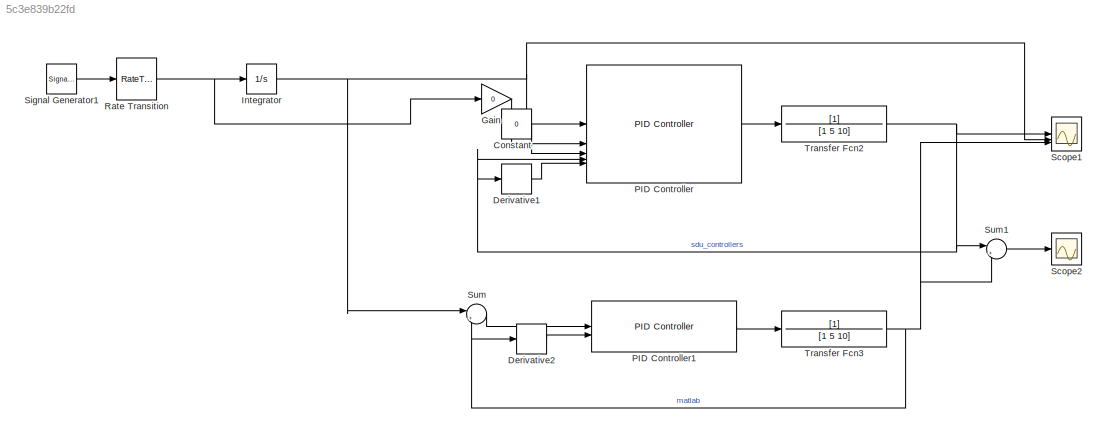
MODEL slx_5c3e839b22fd
KIND model
CONFIG AbsTol = auto
CONFIG EnableMultiTasking = off
CONFIG FixedStep = dt
CONFIG MaxStep = auto
CONFIG MinStep = auto
CONFIG RelTol = 1e-3
CONFIG SampleTimeConstraint = Unconstrained
CONFIG SolverName = ode1
CONFIG StartTime = 0.0
CONFIG StopTime = 50
WORKSPACE source: mxarray member
WORKSPACE Kd = 30
WORKSPACE Ki = 30
WORKSPACE Kp = 100
WORKSPACE N = 0
WORKSPACE dt = 0.01
BLOCK [Constant] Constant
  Value = 0
BLOCK [Derivative] Derivative1
BLOCK [Derivative] Derivative2
BLOCK [Gain] Gain
  Gain = 0
BLOCK [Integrator] Integrator
BLOCK [Reference] PID Controller  REF=sdu_controllers/PID Controller
  SourceBlock = sdu_controllers/PID Controller
  SourceType = pid_controller
BLOCK [Reference] PID Controller1  REF=slpidlib/PID Controller
  LibrarySourceBlock = simulink/Continuous/PID Controller
  SourceBlock = slpidlib/PID Controller
  SourceType = PID 1dof
BLOCK [RateTransition] Rate Transition
  OutPortSampleTime = dt
BLOCK [Scope] Scope1
  Floating = off
  NumInputPorts = 3
  ScopeSpecificationString = Simulink.scopes.TimeScopeBlockCfg('CurrentConfiguration', extmgr.ConfigurationSet(extmgr.Configuration('Core','General UI',true),extmgr.Configuration('Core','Source UI',true),extmgr.Configuration('Sources','WiredSimulink',true,'DataLoggingVariableName','ScopeData2'),extmgr.Configuration('Visuals','Time Domain',true,'SerializedDisplays',{struct('MinYLimReal','-0.07958','MaxYLimReal','0.7162','YLabe...<+1648ch>
BLOCK [Scope] Scope2
  Floating = off
  NumInputPorts = 1
  ScopeSpecificationString = Simulink.scopes.TimeScopeBlockCfg('CurrentConfiguration', extmgr.ConfigurationSet(extmgr.Configuration('Core','General UI',true),extmgr.Configuration('Core','Source UI',true),extmgr.Configuration('Sources','WiredSimulink',true),extmgr.Configuration('Visuals','Time Domain',true,'SerializedDisplays',{struct('MinYLimReal','-0.00000000000000028','MaxYLimReal','0.00000000000000028','YLabelReal','','Min...<+1568ch>
BLOCK [SignalGenerator] Signal Generator1
  Amplitude = 0.1
  Frequency = 0.05
BLOCK [Sum] Sum
  Inputs = |+-
BLOCK [Sum] Sum1
  Inputs = |+-
BLOCK [TransferFcn] Transfer Fcn2
  Denominator = [1 5 10]
BLOCK [TransferFcn] Transfer Fcn3
  Denominator = [1 5 10]
LINE Constant:1 -> PID Controller:3
LINE Derivative1:1 -> PID Controller:5
LINE Derivative2:1 -> PID Controller1:2
LINE Gain:1 -> PID Controller:2
NET Integrator:1 -> PID Controller:1, Scope1:2, Sum:1
LINE PID Controller1:1 -> Transfer Fcn3:1
LINE PID Controller:1 -> Transfer Fcn2:1
NET Rate Transition:1 -> Gain:1, Integrator:1
LINE Signal Generator1:1 -> Rate Transition:1
LINE Sum1:1 -> Scope2:1
LINE Sum:1 -> PID Controller1:1
NET Transfer Fcn2:1 -> Derivative1:1, PID Controller:4, Scope1:1, Sum1:1
NET Transfer Fcn3:1 -> Derivative2:1, Scope1:3, Sum1:2, Sum:2
note: NET lines group one-source signal fan-out (src -> all destinations, sorted); 1:1 wires keep LINE
